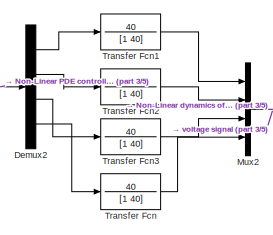
[diagram: root canvas - part 1/5, top center region]
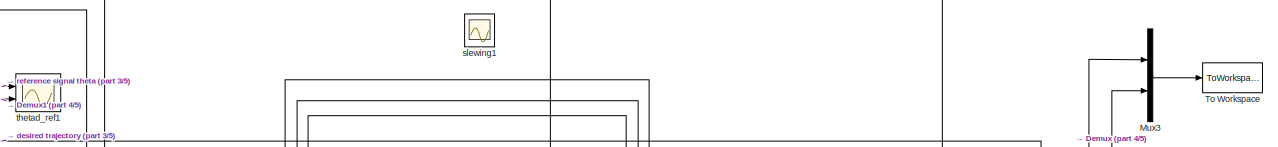
[diagram: root canvas - part 2/5, top center region]
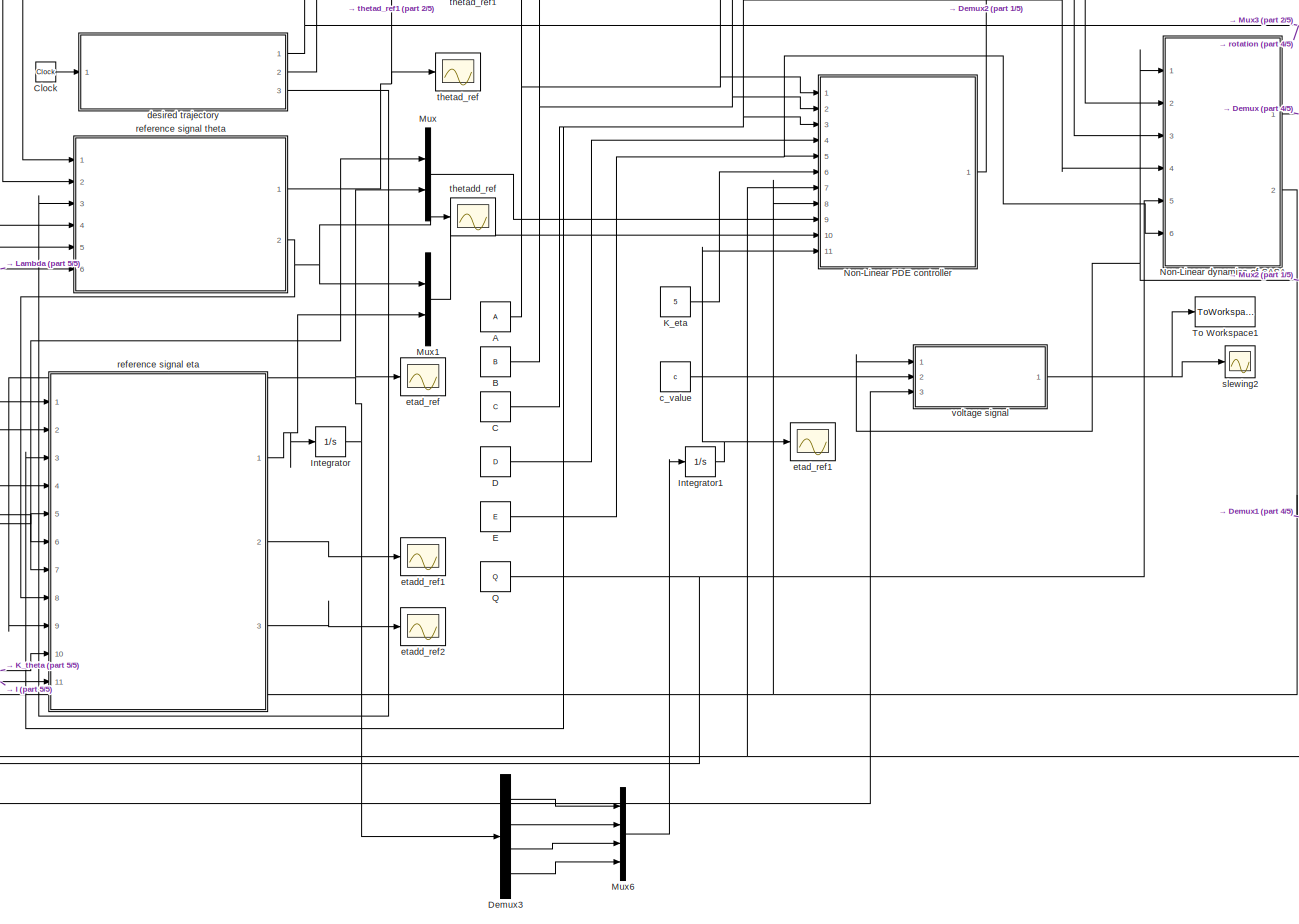
[diagram: root canvas - part 3/5, central region]
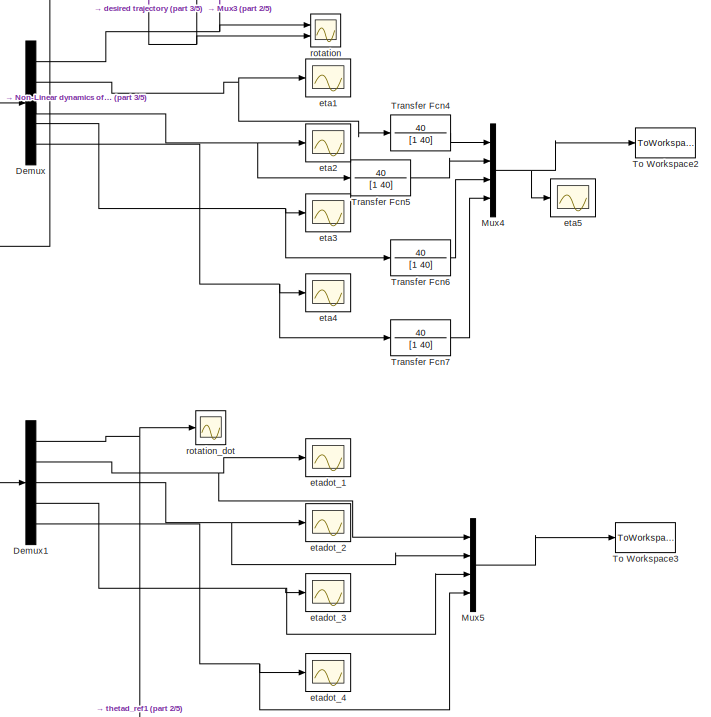
[diagram: root canvas - part 4/5, middle right region]
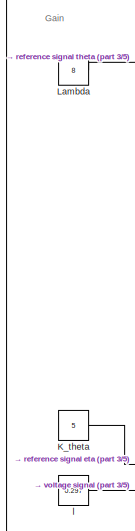
[diagram: root canvas - part 5/5, middle left region]
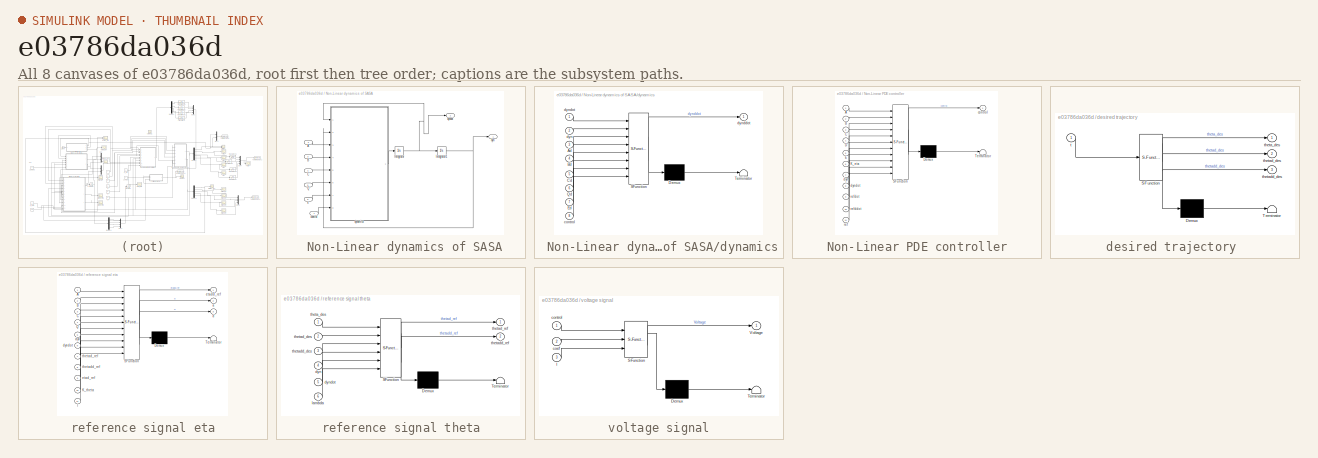
[diagram: thumbnail index - all 8 canvases of the model, root first then tree order]
MODEL slx_e03786da036d
KIND model
CONFIG AbsTol = 1e-3
CONFIG FixedStep = 1e-4
CONFIG MaxStep = 0.00001
CONFIG MinStep = 0.000000001
CONFIG RelTol = 1e-3
CONFIG SampleTimeConstraint = Unconstrained
CONFIG Solver = FixedStepAuto
CONFIG SolverMode = SingleTasking
CONFIG SolverName = FixedStepAuto
CONFIG StartTime = 0.0
CONFIG StopTime = 200
BLOCK [SubSystem]  Non-Linear dynamics of SASA
  Ports = [6, 2]
  RequestExecContextInheritance = off
  Variant = off
BLOCK [Inport]  Non-Linear dynamics of SASA/A
  IconDisplay = Port number
  Port = 2
BLOCK [Inport]  Non-Linear dynamics of SASA/B
  IconDisplay = Port number
  Port = 3
BLOCK [Inport]  Non-Linear dynamics of SASA/C
  IconDisplay = Port number
  Port = 4
BLOCK [Integrator]  Non-Linear dynamics of SASA/Integrator
  AbsoluteTolerance = 1e-40
  InitialCondition = [0 0 0 0 0]
  Ports = [1, 1]
BLOCK [Integrator]  Non-Linear dynamics of SASA/Integrator1
  InitialCondition = [0 0 0 0 0]
  Ports = [1, 1]
BLOCK [Inport]  Non-Linear dynamics of SASA/Q
  IconDisplay = Port number
  Port = 5
BLOCK [Inport]  Non-Linear dynamics of SASA/control
  IconDisplay = Port number
BLOCK [Outport]  Non-Linear dynamics of SASA/dyn
  IconDisplay = Port number
BLOCK [SubSystem]  Non-Linear dynamics of SASA/dynamics
  ErrorFcn = Stateflow.Translate.translate
  PermitHierarchicalResolution = ExplicitOnly
  Ports = [8, 1]
  RequestExecContextInheritance = off
  SFBlockType = MATLAB Function
  TreatAsAtomicUnit = on
  Variant = off
BLOCK [Demux]  Non-Linear dynamics of SASA/dynamics/ Demux 
  Outputs = 1
  Ports = [1, 1]
BLOCK [S-Function]  Non-Linear dynamics of SASA/dynamics/ SFunction 
  EnableBusSupport = on
  FunctionName = sf_sfun
  PortCounts = [8 2]
  Ports = [8, 2]
  SFunctionDeploymentMode = off
  Tag = Stateflow S-Function SASA_two_piezo_final_paper 2
BLOCK [Terminator]  Non-Linear dynamics of SASA/dynamics/ Terminator 
BLOCK [Inport]  Non-Linear dynamics of SASA/dynamics/Ad
  IconDisplay = Port number
  Port = 3
BLOCK [Inport]  Non-Linear dynamics of SASA/dynamics/Bd
  IconDisplay = Port number
  Port = 4
BLOCK [Inport]  Non-Linear dynamics of SASA/dynamics/Cd
  IconDisplay = Port number
  Port = 5
BLOCK [Inport]  Non-Linear dynamics of SASA/dynamics/Ed
  IconDisplay = Port number
  Port = 7
BLOCK [Inport]  Non-Linear dynamics of SASA/dynamics/Qd
  IconDisplay = Port number
  Port = 6
BLOCK [Inport]  Non-Linear dynamics of SASA/dynamics/control
  IconDisplay = Port number
  Port = 8
BLOCK [Inport]  Non-Linear dynamics of SASA/dynamics/dyn
  IconDisplay = Port number
  Port = 2
BLOCK [Outport]  Non-Linear dynamics of SASA/dynamics/dynddot
  IconDisplay = Port number
BLOCK [Inport]  Non-Linear dynamics of SASA/dynamics/dyndot
  IconDisplay = Port number
BLOCK [Outport]  Non-Linear dynamics of SASA/dyndot
  IconDisplay = Port number
  Port = 2
BLOCK [Inport]  Non-Linear dynamics of SASA/e
  IconDisplay = Port number
  Port = 6
BLOCK [Constant] A
  Value = A
  VectorParams1D = off
BLOCK [Constant] B
  Value = B
  VectorParams1D = off
BLOCK [Constant] C
  Value = C
  VectorParams1D = off
BLOCK [Clock] Clock
BLOCK [Constant] D
  Value = D
  VectorParams1D = off
BLOCK [Demux] Demux
  DisplayOption = bar
  Outputs = 5
  Ports = [1, 5]
BLOCK [Demux] Demux1
  DisplayOption = bar
  Outputs = 5
  Ports = [1, 5]
BLOCK [Demux] Demux2
  DisplayOption = bar
  Ports = [1, 4]
BLOCK [Demux] Demux3
  DisplayOption = bar
  Ports = [1, 4]
BLOCK [Constant] E
  Value = E
  VectorParams1D = off
BLOCK [Integrator] Integrator
  InitialCondition = [0 0 0 0]
  Ports = [1, 1]
BLOCK [Integrator] Integrator1
  InitialCondition = [0 0 0 0]
  Ports = [1, 1]
BLOCK [Constant] K_eta
  Value = 5
BLOCK [Constant] K_theta
  Value = 5
BLOCK [Constant] Lambda
  Value = 8
BLOCK [Mux] Mux
  DisplayOption = bar
  Inputs = 2
  Ports = [2, 1]
BLOCK [Mux] Mux1
  DisplayOption = bar
  Inputs = 2
  Ports = [2, 1]
BLOCK [Mux] Mux2
  DisplayOption = bar
  Ports = [4, 1]
BLOCK [Mux] Mux3
  DisplayOption = bar
  Inputs = 2
  Ports = [2, 1]
BLOCK [Mux] Mux4
  DisplayOption = bar
  Ports = [4, 1]
BLOCK [Mux] Mux5
  DisplayOption = bar
  Ports = [4, 1]
BLOCK [Mux] Mux6
  DisplayOption = bar
  Ports = [4, 1]
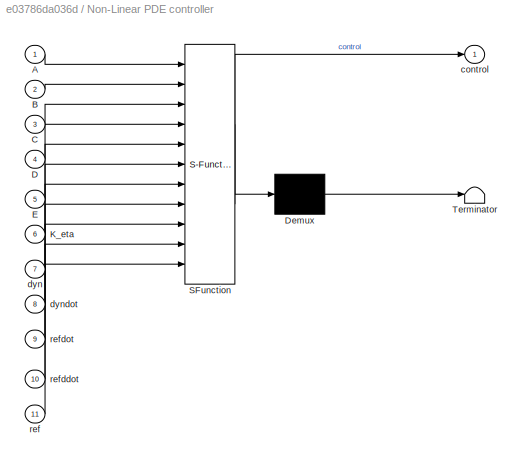
BLOCK [SubSystem] Non-Linear PDE controller
  ErrorFcn = Stateflow.Translate.translate
  PermitHierarchicalResolution = ExplicitOnly
  Ports = [11, 1]
  RequestExecContextInheritance = off
  SFBlockType = MATLAB Function
  TreatAsAtomicUnit = on
  Variant = off
BLOCK [Demux] Non-Linear PDE controller/ Demux 
  Outputs = 1
  Ports = [1, 1]
BLOCK [S-Function] Non-Linear PDE controller/ SFunction 
  EnableBusSupport = on
  FunctionName = sf_sfun
  PortCounts = [11 2]
  Ports = [11, 2]
  SFunctionDeploymentMode = off
  Tag = Stateflow S-Function SASA_two_piezo_final_paper 3
BLOCK [Terminator] Non-Linear PDE controller/ Terminator 
BLOCK [Inport] Non-Linear PDE controller/A
  IconDisplay = Port number
BLOCK [Inport] Non-Linear PDE controller/B
  IconDisplay = Port number
  Port = 2
BLOCK [Inport] Non-Linear PDE controller/C
  IconDisplay = Port number
  Port = 3
BLOCK [Inport] Non-Linear PDE controller/D
  IconDisplay = Port number
  Port = 4
BLOCK [Inport] Non-Linear PDE controller/E
  IconDisplay = Port number
  Port = 5
BLOCK [Inport] Non-Linear PDE controller/K_eta
  IconDisplay = Port number
  Port = 6
BLOCK [Outport] Non-Linear PDE controller/control
  IconDisplay = Port number
BLOCK [Inport] Non-Linear PDE controller/dyn
  IconDisplay = Port number
  Port = 7
BLOCK [Inport] Non-Linear PDE controller/dyndot
  IconDisplay = Port number
  Port = 8
BLOCK [Inport] Non-Linear PDE controller/ref
  IconDisplay = Port number
  Port = 11
BLOCK [Inport] Non-Linear PDE controller/refddot
  IconDisplay = Port number
  Port = 10
BLOCK [Inport] Non-Linear PDE controller/refdot
  IconDisplay = Port number
  Port = 9
BLOCK [Constant] Q
  Value = Q
  VectorParams1D = off
BLOCK [ToWorkspace] To Workspace
  FixptAsFi = on
  MaxDataPoints = inf
  Ports = [1]
  SampleTime = -1
  Save2DSignal = 3-D array (concatenate along third dimension)
  SaveFormat = Timeseries
  VariableName = theta
BLOCK [ToWorkspace] To Workspace1
  FixptAsFi = on
  MaxDataPoints = inf
  Ports = [1]
  SampleTime = -1
  Save2DSignal = 3-D array (concatenate along third dimension)
  SaveFormat = Timeseries
  VariableName = voltage
BLOCK [ToWorkspace] To Workspace2
  FixptAsFi = on
  MaxDataPoints = inf
  Ports = [1]
  SampleTime = -1
  Save2DSignal = 3-D array (concatenate along third dimension)
  SaveFormat = Timeseries
  VariableName = eta
BLOCK [ToWorkspace] To Workspace3
  FixptAsFi = on
  MaxDataPoints = inf
  Ports = [1]
  SampleTime = -1
  Save2DSignal = 3-D array (concatenate along third dimension)
  SaveFormat = Timeseries
  VariableName = eta_dot
BLOCK [TransferFcn] Transfer Fcn
  Denominator = [1 40]
  Numerator = 40
BLOCK [TransferFcn] Transfer Fcn1
  Denominator = [1 40]
  Numerator = 40
BLOCK [TransferFcn] Transfer Fcn2
  Denominator = [1 40]
  Numerator = 40
BLOCK [TransferFcn] Transfer Fcn3
  Denominator = [1 40]
  Numerator = 40
BLOCK [TransferFcn] Transfer Fcn4
  Denominator = [1 40]
  Numerator = 40
BLOCK [TransferFcn] Transfer Fcn5
  Denominator = [1 40]
  Numerator = 40
BLOCK [TransferFcn] Transfer Fcn6
  Denominator = [1 40]
  Numerator = 40
BLOCK [TransferFcn] Transfer Fcn7
  Denominator = [1 40]
  Numerator = 40
BLOCK [Constant] c_value
  Value = c
BLOCK [SubSystem] desired trajectory 
  ErrorFcn = Stateflow.Translate.translate
  PermitHierarchicalResolution = ExplicitOnly
  Ports = [1, 3]
  RequestExecContextInheritance = off
  SFBlockType = MATLAB Function
  TreatAsAtomicUnit = on
  Variant = off
BLOCK [Demux] desired trajectory / Demux 
  Outputs = 1
  Ports = [1, 1]
BLOCK [S-Function] desired trajectory / SFunction 
  EnableBusSupport = on
  FunctionName = sf_sfun
  PortCounts = [1 4]
  Ports = [1, 4]
  SFunctionDeploymentMode = off
  Tag = Stateflow S-Function SASA_two_piezo_final_paper 1
BLOCK [Terminator] desired trajectory / Terminator 
BLOCK [Inport] desired trajectory /t
  IconDisplay = Port number
BLOCK [Outport] desired trajectory /theta_des
  IconDisplay = Port number
BLOCK [Outport] desired trajectory /thetad_des
  IconDisplay = Port number
  Port = 2
BLOCK [Outport] desired trajectory /thetadd_des
  IconDisplay = Port number
  Port = 3
BLOCK [Scope] eta1
  Ports = [1]
  ScopeSpecificationString = Simulink.scopes.TimeScopeBlockCfg('CurrentConfiguration', extmgr.ConfigurationSet(extmgr.Configuration('Core','General UI',true),extmgr.Configuration('Core','Source UI',true),extmgr.Configuration('Sources','WiredSimulink',true,'DataLoggingVariableName','ScopeData5'),extmgr.Configuration('Visuals','Time Domain',true,'SerializedDisplays',{struct('MinYLimReal','-0.00008','MaxYLimReal','0.00008','YLab...<+1440ch>
BLOCK [Scope] eta2
  Ports = [1]
  ScopeSpecificationString = Simulink.scopes.TimeScopeBlockCfg('CurrentConfiguration', extmgr.ConfigurationSet(extmgr.Configuration('Core','General UI',true),extmgr.Configuration('Core','Source UI',true),extmgr.Configuration('Sources','WiredSimulink',true,'DataLoggingVariableName','ScopeData6'),extmgr.Configuration('Visuals','Time Domain',true,'SerializedDisplays',{struct('MinYLimReal','-0.000016','MaxYLimReal','0.000016','YL...<+1447ch>
BLOCK [Scope] eta3
  Ports = [1]
  ScopeSpecificationString = Simulink.scopes.TimeScopeBlockCfg('CurrentConfiguration', extmgr.ConfigurationSet(extmgr.Configuration('Core','General UI',true),extmgr.Configuration('Core','Source UI',true),extmgr.Configuration('Sources','WiredSimulink',true,'DataLoggingVariableName','ScopeData7'),extmgr.Configuration('Visuals','Time Domain',true,'SerializedDisplays',{struct('MinYLimReal','-0.0000026','MaxYLimReal','0.0000026','...<+1453ch>
BLOCK [Scope] eta4
  Ports = [1]
  ScopeSpecificationString = Simulink.scopes.TimeScopeBlockCfg('CurrentConfiguration', extmgr.ConfigurationSet(extmgr.Configuration('Core','General UI',true),extmgr.Configuration('Core','Source UI',true),extmgr.Configuration('Sources','WiredSimulink',true,'DataLoggingVariableName','ScopeData8'),extmgr.Configuration('Visuals','Time Domain',true,'SerializedDisplays',{struct('MinYLimReal','-0.0000012','MaxYLimReal','0.0000002','...<+1453ch>
BLOCK [Scope] eta5
  Ports = [1]
  ScopeSpecificationString = Simulink.scopes.TimeScopeBlockCfg('CurrentConfiguration', extmgr.ConfigurationSet(extmgr.Configuration('Core','General UI',true),extmgr.Configuration('Core','Source UI',true),extmgr.Configuration('Sources','WiredSimulink',true,'DataLoggingVariableName','ScopeData2'),extmgr.Configuration('Visuals','Time Domain',true,'SerializedDisplays',{struct('MinYLimReal','-0.00008','MaxYLimReal','0.00008','YLab...<+1491ch>
BLOCK [Scope] etad_ref
  Ports = [1]
  ScopeSpecificationString = Simulink.scopes.TimeScopeBlockCfg('CurrentConfiguration', extmgr.ConfigurationSet(extmgr.Configuration('Core','General UI',true),extmgr.Configuration('Core','Source UI',true),extmgr.Configuration('Sources','WiredSimulink',true,'DataLoggingVariableName','ScopeData3'),extmgr.Configuration('Visuals','Time Domain',true,'SerializedDisplays',{struct('MinYLimReal','-0.00000032','MaxYLimReal','0.00000046'...<+1522ch>
BLOCK [Scope] etad_ref1
  Ports = [1]
  ScopeSpecificationString = Simulink.scopes.TimeScopeBlockCfg('CurrentConfiguration', extmgr.ConfigurationSet(extmgr.Configuration('Core','General UI',true),extmgr.Configuration('Core','Source UI',true),extmgr.Configuration('Sources','WiredSimulink',true,'DataLoggingVariableName','ScopeData1'),extmgr.Configuration('Visuals','Time Domain',true,'SerializedDisplays',{struct('MinYLimReal','-0.07664','MaxYLimReal','0.11053','YLab...<+1494ch>
BLOCK [Scope] etadd_ref1
  Ports = [1]
  ScopeSpecificationString = Simulink.scopes.TimeScopeBlockCfg('CurrentConfiguration', extmgr.ConfigurationSet(extmgr.Configuration('Core','General UI',true),extmgr.Configuration('Core','Source UI',true),extmgr.Configuration('Sources','WiredSimulink',true,'DataLoggingVariableName','ScopeData15'),extmgr.Configuration('Visuals','Time Domain',true,'SerializedDisplays',{struct('MinYLimReal','-0.00122','MaxYLimReal','0.00068','YLa...<+1456ch>
BLOCK [Scope] etadd_ref2
  Ports = [1]
  ScopeSpecificationString = Simulink.scopes.TimeScopeBlockCfg('CurrentConfiguration', extmgr.ConfigurationSet(extmgr.Configuration('Core','General UI',true),extmgr.Configuration('Core','Source UI',true),extmgr.Configuration('Sources','WiredSimulink',true,'DataLoggingVariableName','ScopeData16'),extmgr.Configuration('Visuals','Time Domain',true,'SerializedDisplays',{struct('MinYLimReal','-0.00175','MaxYLimReal','0.00157','YLa...<+1456ch>
BLOCK [Scope] etadot_1
  Ports = [1]
  ScopeSpecificationString = Simulink.scopes.TimeScopeBlockCfg('CurrentConfiguration', extmgr.ConfigurationSet(extmgr.Configuration('Core','General UI',true),extmgr.Configuration('Core','Source UI',true),extmgr.Configuration('Sources','WiredSimulink',true,'DataLoggingVariableName','ScopeData9'),extmgr.Configuration('Visuals','Time Domain',true,'SerializedDisplays',{struct('MinYLimReal','-0.00437','MaxYLimReal','0.00328','YLab...<+1441ch>
BLOCK [Scope] etadot_2
  Ports = [1]
  ScopeSpecificationString = Simulink.scopes.TimeScopeBlockCfg('CurrentConfiguration', extmgr.ConfigurationSet(extmgr.Configuration('Core','General UI',true),extmgr.Configuration('Core','Source UI',true),extmgr.Configuration('Sources','WiredSimulink',true,'DataLoggingVariableName','ScopeData10'),extmgr.Configuration('Visuals','Time Domain',true,'SerializedDisplays',{struct('MinYLimReal','-0.0007','MaxYLimReal','0.00058','YLab...<+1435ch>
BLOCK [Scope] etadot_3
  Ports = [1]
  ScopeSpecificationString = Simulink.scopes.TimeScopeBlockCfg('CurrentConfiguration', extmgr.ConfigurationSet(extmgr.Configuration('Core','General UI',true),extmgr.Configuration('Core','Source UI',true),extmgr.Configuration('Sources','WiredSimulink',true,'DataLoggingVariableName','ScopeData11'),extmgr.Configuration('Visuals','Time Domain',true,'SerializedDisplays',{struct('MinYLimReal','-0.0003','MaxYLimReal','0.00027','YLab...<+1435ch>
BLOCK [Scope] etadot_4
  Ports = [1]
  ScopeSpecificationString = Simulink.scopes.TimeScopeBlockCfg('CurrentConfiguration', extmgr.ConfigurationSet(extmgr.Configuration('Core','General UI',true),extmgr.Configuration('Core','Source UI',true),extmgr.Configuration('Sources','WiredSimulink',true,'DataLoggingVariableName','ScopeData12'),extmgr.Configuration('Visuals','Time Domain',true,'SerializedDisplays',{struct('MinYLimReal','-0.00016','MaxYLimReal','0.00016','YLa...<+1439ch>
BLOCK [Constant] l
  Value = 0.297
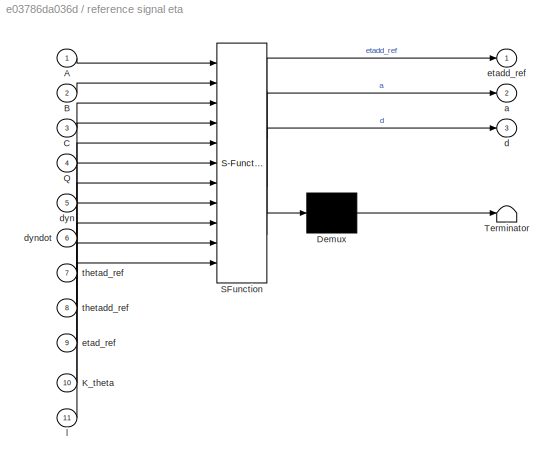
BLOCK [SubSystem] reference signal eta
  ErrorFcn = Stateflow.Translate.translate
  PermitHierarchicalResolution = ExplicitOnly
  Ports = [11, 3]
  RequestExecContextInheritance = off
  SFBlockType = MATLAB Function
  TreatAsAtomicUnit = on
  Variant = off
BLOCK [Demux] reference signal eta/ Demux 
  Outputs = 1
  Ports = [1, 1]
BLOCK [S-Function] reference signal eta/ SFunction 
  EnableBusSupport = on
  FunctionName = sf_sfun
  PortCounts = [11 4]
  Ports = [11, 4]
  SFunctionDeploymentMode = off
  Tag = Stateflow S-Function SASA_two_piezo_final_paper 6
BLOCK [Terminator] reference signal eta/ Terminator 
BLOCK [Inport] reference signal eta/A
  IconDisplay = Port number
BLOCK [Inport] reference signal eta/B
  IconDisplay = Port number
  Port = 2
BLOCK [Inport] reference signal eta/C
  IconDisplay = Port number
  Port = 3
BLOCK [Inport] reference signal eta/K_theta
  IconDisplay = Port number
  Port = 10
BLOCK [Inport] reference signal eta/Q
  IconDisplay = Port number
  Port = 4
BLOCK [Outport] reference signal eta/a
  IconDisplay = Port number
  Port = 2
BLOCK [Outport] reference signal eta/d
  IconDisplay = Port number
  Port = 3
BLOCK [Inport] reference signal eta/dyn
  IconDisplay = Port number
  Port = 5
BLOCK [Inport] reference signal eta/dyndot
  IconDisplay = Port number
  Port = 6
BLOCK [Inport] reference signal eta/etad_ref
  IconDisplay = Port number
  Port = 9
BLOCK [Outport] reference signal eta/etadd_ref
  IconDisplay = Port number
BLOCK [Inport] reference signal eta/l
  IconDisplay = Port number
  Port = 11
BLOCK [Inport] reference signal eta/thetad_ref
  IconDisplay = Port number
  Port = 7
BLOCK [Inport] reference signal eta/thetadd_ref
  IconDisplay = Port number
  Port = 8
BLOCK [SubSystem] reference signal theta
  ErrorFcn = Stateflow.Translate.translate
  PermitHierarchicalResolution = ExplicitOnly
  Ports = [6, 2]
  RequestExecContextInheritance = off
  SFBlockType = MATLAB Function
  TreatAsAtomicUnit = on
  Variant = off
BLOCK [Demux] reference signal theta/ Demux 
  Outputs = 1
  Ports = [1, 1]
BLOCK [S-Function] reference signal theta/ SFunction 
  EnableBusSupport = on
  FunctionName = sf_sfun
  PortCounts = [6 3]
  Ports = [6, 3]
  SFunctionDeploymentMode = off
  Tag = Stateflow S-Function SASA_two_piezo_final_paper 4
BLOCK [Terminator] reference signal theta/ Terminator 
BLOCK [Inport] reference signal theta/dyn
  IconDisplay = Port number
  Port = 4
BLOCK [Inport] reference signal theta/dyndot
  IconDisplay = Port number
  Port = 5
BLOCK [Inport] reference signal theta/lambda
  IconDisplay = Port number
  Port = 6
BLOCK [Inport] reference signal theta/theta_des
  IconDisplay = Port number
BLOCK [Inport] reference signal theta/thetad_des
  IconDisplay = Port number
  Port = 2
BLOCK [Outport] reference signal theta/thetad_ref
  IconDisplay = Port number
BLOCK [Inport] reference signal theta/thetadd_des
  IconDisplay = Port number
  Port = 3
BLOCK [Outport] reference signal theta/thetadd_ref
  IconDisplay = Port number
  Port = 2
BLOCK [Scope] rotation
  NumInputPorts = 2
  Ports = [2]
  ScopeSpecificationString = Simulink.scopes.TimeScopeBlockCfg('CurrentConfiguration', extmgr.ConfigurationSet(extmgr.Configuration('Core','General UI',true),extmgr.Configuration('Core','Source UI',true),extmgr.Configuration('Sources','WiredSimulink',true),extmgr.Configuration('Visuals','Time Domain',true,'SerializedDisplays',{struct('MinYLimReal','-0.00125','MaxYLimReal','0.00125','YLabelReal','','MinYLimMag','0.00000','MaxY...<+1433ch>
BLOCK [Scope] rotation_dot
  Ports = [1]
  ScopeSpecificationString = Simulink.scopes.TimeScopeBlockCfg('CurrentConfiguration', extmgr.ConfigurationSet(extmgr.Configuration('Core','General UI',true),extmgr.Configuration('Core','Source UI',true),extmgr.Configuration('Sources','WiredSimulink',true,'DataLoggingVariableName','ScopeData13'),extmgr.Configuration('Visuals','Time Domain',true,'SerializedDisplays',{struct('MinYLimReal','-0.000008','MaxYLimReal','0.000069','Y...<+1450ch>
BLOCK [Scope] slewing1
  NumInputPorts = 2
  Ports = [2]
  ScopeSpecificationString = Simulink.scopes.TimeScopeBlockCfg('CurrentConfiguration', extmgr.ConfigurationSet(extmgr.Configuration('Core','General UI',true),extmgr.Configuration('Core','Source UI',true),extmgr.Configuration('Sources','WiredSimulink',true,'DataLoggingVariableName','ScopeData1'),extmgr.Configuration('Visuals','Time Domain',true,'SerializedDisplays',{struct('MinYLimReal','-1.02819','MaxYLimReal','1.02819','YLab...<+1562ch>
BLOCK [Scope] slewing2
  Ports = [1]
  ScopeSpecificationString = Simulink.scopes.TimeScopeBlockCfg('CurrentConfiguration', extmgr.ConfigurationSet(extmgr.Configuration('Core','General UI',true),extmgr.Configuration('Core','Source UI',true),extmgr.Configuration('Sources','WiredSimulink',true,'DataLoggingVariableName','ScopeData1'),extmgr.Configuration('Visuals','Time Domain',true,'SerializedDisplays',{struct('MinYLimReal','-30.55463','MaxYLimReal','60.82085','YL...<+1474ch>
BLOCK [Scope] thetad_ref
  Ports = [1]
  ScopeSpecificationString = Simulink.scopes.TimeScopeBlockCfg('CurrentConfiguration', extmgr.ConfigurationSet(extmgr.Configuration('Core','General UI',true),extmgr.Configuration('Core','Source UI',true),extmgr.Configuration('Sources','WiredSimulink',true,'DataLoggingVariableName','ScopeData1'),extmgr.Configuration('Visuals','Time Domain',true,'SerializedDisplays',{struct('MinYLimReal','-0.03938','MaxYLimReal','0.03972','YLab...<+1463ch>
BLOCK [Scope] thetad_ref1
  NumInputPorts = 2
  Ports = [2]
  ScopeSpecificationString = Simulink.scopes.TimeScopeBlockCfg('CurrentConfiguration', extmgr.ConfigurationSet(extmgr.Configuration('Core','General UI',true),extmgr.Configuration('Core','Source UI',true),extmgr.Configuration('Sources','WiredSimulink',true,'DataLoggingVariableName','ScopeData14'),extmgr.Configuration('Visuals','Time Domain',true,'SerializedDisplays',{struct('MinYLimReal','-0.03938','MaxYLimReal','0.03972','YLa...<+1478ch>
BLOCK [Scope] thetadd_ref
  Ports = [1]
  ScopeSpecificationString = Simulink.scopes.TimeScopeBlockCfg('CurrentConfiguration', extmgr.ConfigurationSet(extmgr.Configuration('Core','General UI',true),extmgr.Configuration('Core','Source UI',true),extmgr.Configuration('Sources','WiredSimulink',true,'DataLoggingVariableName','ScopeData2'),extmgr.Configuration('Visuals','Time Domain',true,'SerializedDisplays',{struct('MinYLimReal','-0.0000012','MaxYLimReal','0.0000001','...<+1480ch>
BLOCK [SubSystem] voltage signal
  ErrorFcn = Stateflow.Translate.translate
  PermitHierarchicalResolution = ExplicitOnly
  Ports = [3, 1]
  RequestExecContextInheritance = off
  SFBlockType = MATLAB Function
  TreatAsAtomicUnit = on
  Variant = off
BLOCK [Demux] voltage signal/ Demux 
  Outputs = 1
  Ports = [1, 1]
BLOCK [S-Function] voltage signal/ SFunction 
  EnableBusSupport = on
  FunctionName = sf_sfun
  PortCounts = [3 2]
  Ports = [3, 2]
  SFunctionDeploymentMode = off
  Tag = Stateflow S-Function SASA_two_piezo_final_paper 9
BLOCK [Terminator] voltage signal/ Terminator 
BLOCK [Outport] voltage signal/Voltage
  IconDisplay = Port number
BLOCK [Inport] voltage signal/coef
  IconDisplay = Port number
  Port = 2
BLOCK [Inport] voltage signal/control
  IconDisplay = Port number
BLOCK [Inport] voltage signal/l
  IconDisplay = Port number
  Port = 3
ANNOTATION (root): Gain
LINE  Non-Linear dynamics of SASA/A:1 ->  Non-Linear dynamics of SASA/dynamics:3
LINE  Non-Linear dynamics of SASA/B:1 ->  Non-Linear dynamics of SASA/dynamics:4
LINE  Non-Linear dynamics of SASA/C:1 ->  Non-Linear dynamics of SASA/dynamics:5
NET  Non-Linear dynamics of SASA/Integrator1:1 ->  Non-Linear dynamics of SASA/dyn:1,  Non-Linear dynamics of SASA/dynamics:2
NET  Non-Linear dynamics of SASA/Integrator:1 ->  Non-Linear dynamics of SASA/Integrator1:1,  Non-Linear dynamics of SASA/dynamics:1,  Non-Linear dynamics of SASA/dyndot:1
LINE  Non-Linear dynamics of SASA/Q:1 ->  Non-Linear dynamics of SASA/dynamics:6
LINE  Non-Linear dynamics of SASA/control:1 ->  Non-Linear dynamics of SASA/dynamics:8
LINE  Non-Linear dynamics of SASA/dynamics:1 ->  Non-Linear dynamics of SASA/Integrator:1
LINE  Non-Linear dynamics of SASA/e:1 ->  Non-Linear dynamics of SASA/dynamics:7
NET  Non-Linear dynamics of SASA:1 -> Demux:1, Non-Linear PDE controller:7, reference signal eta:5, reference signal theta:4
NET  Non-Linear dynamics of SASA:2 -> Demux1:1, Non-Linear PDE controller:8, reference signal eta:6, reference signal theta:5
NET A:1 ->  Non-Linear dynamics of SASA:2, Non-Linear PDE controller:1, reference signal eta:1
NET B:1 ->  Non-Linear dynamics of SASA:3, Non-Linear PDE controller:2, reference signal eta:2
NET C:1 ->  Non-Linear dynamics of SASA:4, Non-Linear PDE controller:3, reference signal eta:3
LINE Clock:1 -> desired trajectory :1
LINE D:1 -> Non-Linear PDE controller:4
NET Demux1:1 -> rotation_dot:1, thetad_ref1:2
NET Demux1:2 -> Mux5:1, etadot_1:1
NET Demux1:3 -> Mux5:2, etadot_2:1
NET Demux1:4 -> Mux5:3, etadot_3:1
NET Demux1:5 -> Mux5:4, etadot_4:1
LINE Demux2:1 -> Transfer Fcn1:1
LINE Demux2:2 -> Transfer Fcn2:1
LINE Demux2:3 -> Transfer Fcn3:1
LINE Demux2:4 -> Transfer Fcn:1
LINE Demux3:1 -> Mux6:1
LINE Demux3:2 -> Mux6:2
LINE Demux3:3 -> Mux6:3
LINE Demux3:4 -> Mux6:4
NET Demux:1 -> Mux3:2, rotation:1
NET Demux:2 -> Transfer Fcn4:1, eta1:1
NET Demux:3 -> Transfer Fcn5:1, eta2:1
NET Demux:4 -> Transfer Fcn6:1, eta3:1
NET Demux:5 -> Transfer Fcn7:1, eta4:1
NET E:1 ->  Non-Linear dynamics of SASA:6, Non-Linear PDE controller:5
NET Integrator1:1 -> Non-Linear PDE controller:11, etad_ref1:1
NET Integrator:1 -> Demux3:1, Mux:2, etad_ref:1, reference signal eta:9
LINE K_eta:1 -> Non-Linear PDE controller:6
LINE K_theta:1 -> reference signal eta:10
LINE Lambda:1 -> reference signal theta:6
LINE Mux1:1 -> Non-Linear PDE controller:10
NET Mux2:1 ->  Non-Linear dynamics of SASA:1, voltage signal:1
LINE Mux3:1 -> To Workspace:1
NET Mux4:1 -> To Workspace2:1, eta5:1
LINE Mux5:1 -> To Workspace3:1
LINE Mux6:1 -> Integrator1:1
LINE Mux:1 -> Non-Linear PDE controller:9
LINE Non-Linear PDE controller:1 -> Demux2:1
NET Q:1 ->  Non-Linear dynamics of SASA:5, reference signal eta:4
LINE Transfer Fcn1:1 -> Mux2:1
LINE Transfer Fcn2:1 -> Mux2:2
LINE Transfer Fcn3:1 -> Mux2:3
LINE Transfer Fcn4:1 -> Mux4:1
LINE Transfer Fcn5:1 -> Mux4:2
LINE Transfer Fcn6:1 -> Mux4:3
LINE Transfer Fcn7:1 -> Mux4:4
LINE Transfer Fcn:1 -> Mux2:4
LINE c_value:1 -> voltage signal:2
NET desired trajectory :1 -> Mux3:1, reference signal theta:1, rotation:2
LINE desired trajectory :2 -> reference signal theta:2
LINE desired trajectory :3 -> reference signal theta:3
NET l:1 -> reference signal eta:11, voltage signal:3
NET reference signal eta:1 -> Integrator:1, Mux1:2
LINE reference signal eta:2 -> etadd_ref1:1
LINE reference signal eta:3 -> etadd_ref2:1
NET reference signal theta:1 -> Mux:1, reference signal eta:7, thetad_ref1:1, thetad_ref:1
NET reference signal theta:2 -> Mux1:1, reference signal eta:8, thetadd_ref:1
NET voltage signal:1 -> To Workspace1:1, slewing2:1
note: NET lines group one-source signal fan-out (src -> all destinations, sorted); 1:1 wires keep LINE
CHART desired trajectory
 states=1 transitions=1
  STATE_LABEL 'eML_blk_kernel()'
  STATE_LABEL 'SCRIPT:\nfunction [theta_des,thetad_des,thetadd_des] = fcn(t)\n\n%% trajectory planned\n% \n% \n% % % if t<12.5\n%     \ntheta_des=0.001*sin(2*pi*0.02*t);\nthetad_des=0.001*2*pi*0.02*cos(2*pi*0.02*t);\nthetadd_des=-0.001*2*pi*2*pi*0.02*0.02*sin(2*pi*0.02*t);\n% % \n% \n% theta_des=0.001*sin(2*pi*1*t);\n% thetad_des=0.001*2*pi*1*cos(2*pi*1*t);\n% thetadd_des=-0.001*2*pi*2*pi*sin(2*pi*1*t);\n% % else\n% %     \n% % t...<+711ch>'
CHART  Non-Linear dynamics of SASA/dynamics states=1 transitions=1
  STATE_LABEL 'eML_blk_kernel()'
  STATE_LABEL 'SCRIPT:\nfunction dynddot  = fcn(dyndot,dyn,Ad,Bd,Cd,Qd,Ed,control)\n%#codegen\n% function dynamics of spacecraft and the rightSA\n% generating matrices to use in the dynamics.\n% number of modes used =4 (we use 2nd order equations here)\n%dynamics of theta and eta\ndyndot1=dyndot(1);\ndyndot2=[dyndot(2);dyndot(3);dyndot(4);dyndot(5)];\ndyn2=[dyn(2);dyn(3);dyn(4);dyn(5)];\n% AA= [Qd+2*(transpose(dyn2)*(Ad-B...<+516ch>'
CHART Non-Linear PDE controller states=1 transitions=1
  STATE_LABEL 'eML_blk_kernel()'
  STATE_LABEL "SCRIPT:\nfunction control  = fcn(A,B,C,D,E,K_eta,dyn,dyndot,refdot,refddot,ref)\n%% ref signals include both theta ref and eta ref\nmu=0.001;\nq2=[dyn(2);dyn(3);dyn(4);dyn(5)];\nq1d=dyndot(1);\nq2d=[dyndot(2);dyndot(3);dyndot(4);dyndot(5)];\nr2d=[refdot(2);refdot(3);refdot(4);refdot(5)];\nMa=[C' A];\nCa=[-(A-B)*q1d*q2 zeros(4,4)];\n%Ha= 0.0001*E*(ref +mu*r2d);\n  Ha= 1*E*(q2 +mu*q2d);\nSa= K_eta*D*(q2d-r2d);\n...<+64ch>"
CHART reference signal theta states=1 transitions=1
  STATE_LABEL 'eML_blk_kernel()'
  STATE_LABEL 'SCRIPT:\nfunction [thetad_ref,thetadd_ref] = fcn(theta_des,thetad_des,thetadd_des,dyn,dyndot,lambda)\n%#codegen\nthetad_ref=thetad_des - lambda*(dyn(1)-theta_des);\nthetadd_ref= thetadd_des - lambda*(dyndot(1)-thetad_des);\n'
CHART reference signal eta states=1 transitions=1
  STATE_LABEL 'eML_blk_kernel()'
  STATE_LABEL "SCRIPT:\nfunction [etadd_ref,a,d]= fcn(A,B,C,Q,dyn,dyndot,thetad_ref,thetadd_ref,etad_ref,K_theta,l)\n%#codegen 3\n\nq1=[dyn(2);dyn(3);dyn(4);dyn(5)];\nq1d=[dyndot(2);dyndot(3);dyndot(4);dyndot(5)];\n% \n% AB= A-B;\n% m11= Q+ (2*q1'*(AB)*q1);\n% m12= 2*C;\n% c11= 2*q1d'*(AB)*q1;\n% c12= 2*q1'*(AB)*dyndot(1);\n% Gain =K_theta*l;\nAB= A-B;\nm11= (Q/2) + (q1'*(AB)*q1);\nm12= C;\nc11= q1d'*(AB)*q1;\nc12= q1'*(AB)*dynd...<+207ch>"
CHART voltage signal states=1 transitions=1
  STATE_LABEL 'eML_blk_kernel()'
  STATE_LABEL 'SCRIPT:\nfunction Voltage = fcn(control,coef,l)\n\nc=coef;\nlb=l;\nlp=7.24*10^-2; % length of the piezo\n% Piezo1 location \nlp_1=1.1*10^-2; % distance of the root of the piezo from that beamroot\nlp_2=lp_1+lp;\n\ndpp=  0.47*10^-2;\n\nlp_3= lp_2+dpp;\nlp_4=lp_3+lp;\n\n\n\nphip1_l1=(1*pi*sin(1*pi*lp_1/lb)/lb) +(((-1)^(1+1))*((1*pi/lb)^2)*lp_1);\nphip2_l1= (2*pi*sin(2*pi*lp_1/lb)/lb) +(((-1)^(2+1))*((2*pi/lb)^2)*lp_1...<+1322ch>'
